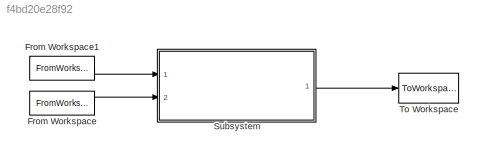
MODEL slx_f4bd20e28f92
KIND model
CONFIG AbsTol = auto
CONFIG EnableMultiTasking = off
CONFIG FixedStep = auto
CONFIG MaxStep = auto
CONFIG MinStep = auto
CONFIG RelTol = 1e-3
CONFIG SampleTimeConstraint = Unconstrained
CONFIG Solver = VariableStepAuto
CONFIG SolverName = VariableStepAuto
CONFIG StartTime = 0.0
CONFIG StopTime = 10.0
BLOCK [FromWorkspace] From Workspace
  SampleTime = Ts
  VariableName = hwSim
  ZeroCross = on
BLOCK [FromWorkspace] From Workspace1
  SampleTime = Ts
  VariableName = NSim
  ZeroCross = on
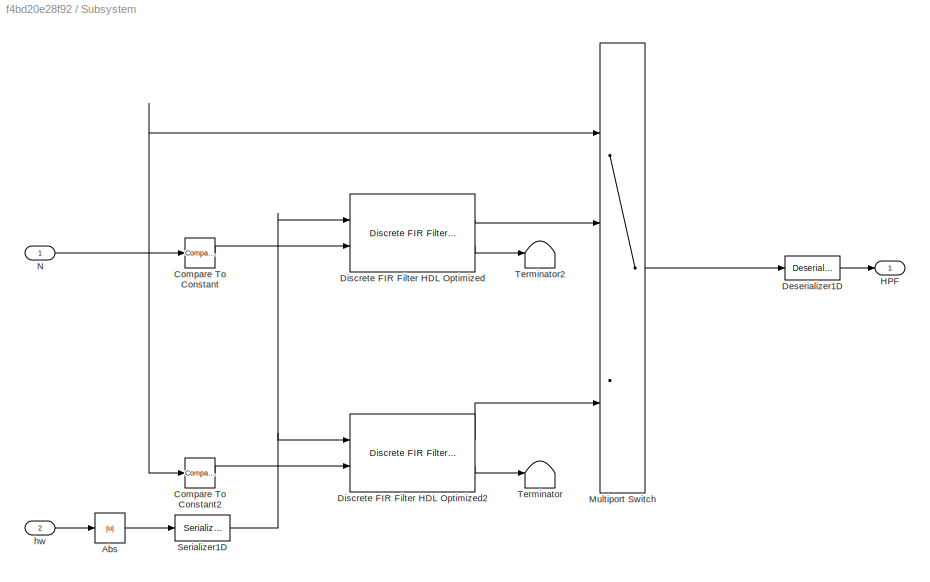
BLOCK [SubSystem] Subsystem
  Ports = [2, 1]
  RequestExecContextInheritance = off
BLOCK [Abs] Subsystem/Abs
  SaturateOnIntegerOverflow = off
BLOCK [Reference] Subsystem/Compare To Constant  REF=simulink/Logic and Bit
Operations/Compare
To Constant
  Ports = [1, 1]
  SourceBlock = simulink/Logic and Bit\nOperations/Compare\nTo Constant
  SourceProductBaseCode = SL
  SourceProductName = Simulink
  SourceType = Compare To Constant
BLOCK [Reference] Subsystem/Compare To Constant2  REF=simulink/Logic and Bit
Operations/Compare
To Constant
  Ports = [1, 1]
  SourceBlock = simulink/Logic and Bit\nOperations/Compare\nTo Constant
  SourceProductBaseCode = SL
  SourceProductName = Simulink
  SourceType = Compare To Constant
BLOCK [Reference] Subsystem/Deserializer1D  REF=hdlsllib/HDL Operations/Deserializer1D
  Ports = [1, 1]
  SourceBlock = hdlsllib/HDL Operations/Deserializer1D
  SourceProductBaseCode = SL
  SourceProductName = Simulink
  SourceType = Deserializer1D
BLOCK [Reference] Subsystem/Discrete FIR Filter HDL Optimized  REF=dsphdlfiltering/Discrete FIR Filter
HDL Optimized
  Ports = [2, 2]
  SourceBlock = dsphdlfiltering/Discrete FIR Filter\nHDL Optimized
  SourceProductBaseCode = DS
  SourceProductName = DSP System Toolbox
  SourceType = Discrete FIR Filter HDL Optimized
BLOCK [Reference] Subsystem/Discrete FIR Filter HDL Optimized2  REF=dsphdlfiltering/Discrete FIR Filter
HDL Optimized
  Ports = [2, 2]
  SourceBlock = dsphdlfiltering/Discrete FIR Filter\nHDL Optimized
  SourceProductBaseCode = DS
  SourceProductName = DSP System Toolbox
  SourceType = Discrete FIR Filter HDL Optimized
BLOCK [Outport] Subsystem/HPF
  IconDisplay = Port number
BLOCK [MultiPortSwitch] Subsystem/Multiport Switch
  InputSameDT = off
  Ports = [4, 1]
  SaturateOnIntegerOverflow = off
BLOCK [Inport] Subsystem/N
  IconDisplay = Port number
BLOCK [Reference] Subsystem/Serializer1D  REF=hdlsllib/HDL Operations/Serializer1D
  Ports = [1, 1]
  SourceBlock = hdlsllib/HDL Operations/Serializer1D
  SourceProductBaseCode = SL
  SourceProductName = Simulink
  SourceType = Serializer1D
BLOCK [Terminator] Subsystem/Terminator
BLOCK [Terminator] Subsystem/Terminator2
BLOCK [Inport] Subsystem/hw
  IconDisplay = Port number
  Port = 2
BLOCK [ToWorkspace] To Workspace
  FixptAsFi = on
  MaxDataPoints = inf
  Ports = [1]
  SampleTime = -1
  SaveFormat = Structure With Time
  VariableName = HPF_Sim
LINE From Workspace1:1 -> Subsystem:1
LINE From Workspace:1 -> Subsystem:2
LINE Subsystem/Abs:1 -> Subsystem/Serializer1D:1
LINE Subsystem/Compare To Constant2:1 -> Subsystem/Discrete FIR Filter HDL Optimized2:2
LINE Subsystem/Compare To Constant:1 -> Subsystem/Discrete FIR Filter HDL Optimized:2
LINE Subsystem/Deserializer1D:1 -> Subsystem/HPF:1
LINE Subsystem/Discrete FIR Filter HDL Optimized2:1 -> Subsystem/Multiport Switch:4
LINE Subsystem/Discrete FIR Filter HDL Optimized2:2 -> Subsystem/Terminator:1
LINE Subsystem/Discrete FIR Filter HDL Optimized:1 -> Subsystem/Multiport Switch:2
LINE Subsystem/Discrete FIR Filter HDL Optimized:2 -> Subsystem/Terminator2:1
LINE Subsystem/Multiport Switch:1 -> Subsystem/Deserializer1D:1
NET Subsystem/N:1 -> Subsystem/Compare To Constant2:1, Subsystem/Compare To Constant:1, Subsystem/Multiport Switch:1
NET Subsystem/Serializer1D:1 -> Subsystem/Discrete FIR Filter HDL Optimized2:1, Subsystem/Discrete FIR Filter HDL Optimized:1
LINE Subsystem/hw:1 -> Subsystem/Abs:1
LINE Subsystem:1 -> To Workspace:1
note: NET lines group one-source signal fan-out (src -> all destinations, sorted); 1:1 wires keep LINE
